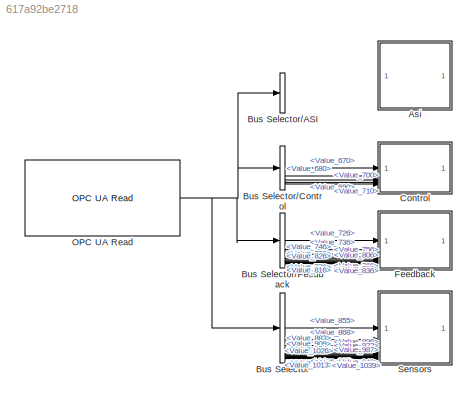
MODEL slx_617a92be2718
KIND model
CONFIG AbsTol = auto
CONFIG EnableMultiTasking = off
CONFIG FixedStep = auto
CONFIG MaxStep = auto
CONFIG MinStep = auto
CONFIG RelTol = 1e-3
CONFIG SampleTimeConstraint = Unconstrained
CONFIG SolverName = VariableStepAuto
CONFIG StartTime = 0.0
CONFIG StopTime = 10.0
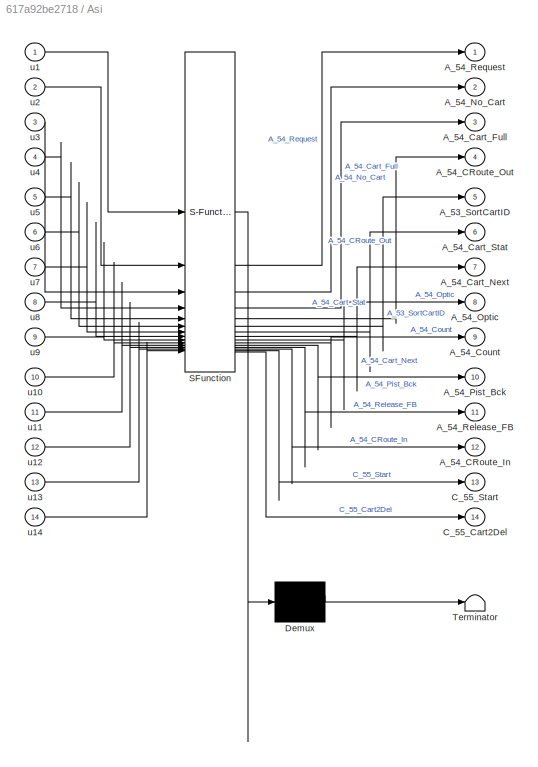
BLOCK [SubSystem] Asi
  ErrorFcn = Stateflow.Translate.translate
  PermitHierarchicalResolution = ExplicitOnly
  SFBlockType = MATLAB Function
  TreatAsAtomicUnit = on
BLOCK [Demux] Asi/ Demux 
  Outputs = 1
BLOCK [S-Function] Asi/ SFunction 
  EnableBusSupport = off
  FunctionName = sf_sfun
  PortCounts = [14 15]
  SFcnIsStateOwnerBlock = off
  SFunctionDeploymentMode = off
  Tag = Stateflow S-Function 2
BLOCK [Terminator] Asi/ Terminator 
BLOCK [Outport] Asi/A_53_SortCartID
  Port = 5
BLOCK [Outport] Asi/A_54_CRoute_In
  Port = 12
BLOCK [Outport] Asi/A_54_CRoute_Out
  Port = 4
BLOCK [Outport] Asi/A_54_Cart_Full
  Port = 3
BLOCK [Outport] Asi/A_54_Cart_Next
  Port = 7
BLOCK [Outport] Asi/A_54_Cart_Stat
  Port = 6
BLOCK [Outport] Asi/A_54_Count
  Port = 9
BLOCK [Outport] Asi/A_54_No_Cart
  Port = 2
BLOCK [Outport] Asi/A_54_Optic
  Port = 8
BLOCK [Outport] Asi/A_54_Pist_Bck
  Port = 10
BLOCK [Outport] Asi/A_54_Release_FB
  Port = 11
BLOCK [Outport] Asi/A_54_Request
BLOCK [Outport] Asi/C_55_Cart2Del
  Port = 14
BLOCK [Outport] Asi/C_55_Start
  Port = 13
BLOCK [Inport] Asi/u1
BLOCK [Inport] Asi/u10
  Port = 10
BLOCK [Inport] Asi/u11
  Port = 11
BLOCK [Inport] Asi/u12
  Port = 12
BLOCK [Inport] Asi/u13
  Port = 13
BLOCK [Inport] Asi/u14
  Port = 14
BLOCK [Inport] Asi/u2
  Port = 2
BLOCK [Inport] Asi/u3
  Port = 3
BLOCK [Inport] Asi/u4
  Port = 4
BLOCK [Inport] Asi/u5
  Port = 5
BLOCK [Inport] Asi/u6
  Port = 6
BLOCK [Inport] Asi/u7
  Port = 7
BLOCK [Inport] Asi/u8
  Port = 8
BLOCK [Inport] Asi/u9
  Port = 9
BLOCK [BusSelector] Bus Selector
  OutputSignals = Value_855,Value_868,Value_883,Value_896,Value_909,Value_922,Value_935,Value_948,Value_961,Value_974,Value_987,Value_1000,Value_1013,Value_1026,Value_1039
BLOCK [BusSelector] Bus Selector//ASI
  OutputSignals = Value_574,Value_584,Value_594,Value_604,Value_614,Value_624,Value_634,Value_644,Value_654
BLOCK [BusSelector] Bus Selector//Control
  OutputSignals = Value_670,Value_680,Value_690,Value_700,Value_710
BLOCK [BusSelector] Bus Selector//Feedback
  OutputSignals = Value_726,Value_736,Value_746,Value_756,Value_766,Value_776,Value_786,Value_796,Value_806,Value_816,Value_826,Value_836
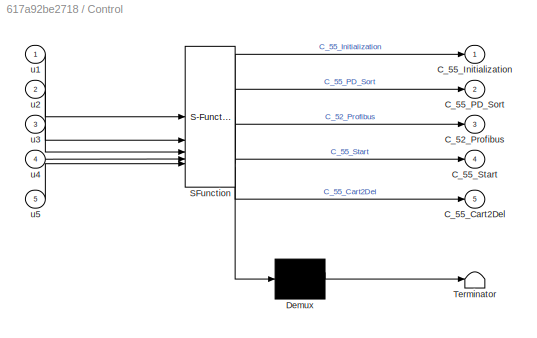
BLOCK [SubSystem] Control
  ErrorFcn = Stateflow.Translate.translate
  PermitHierarchicalResolution = ExplicitOnly
  SFBlockType = MATLAB Function
  TreatAsAtomicUnit = on
BLOCK [Demux] Control/ Demux 
  Outputs = 1
BLOCK [S-Function] Control/ SFunction 
  EnableBusSupport = off
  FunctionName = sf_sfun
  PortCounts = [5 6]
  SFcnIsStateOwnerBlock = off
  SFunctionDeploymentMode = off
  Tag = Stateflow S-Function 1
BLOCK [Terminator] Control/ Terminator 
BLOCK [Outport] Control/C_52_Profibus
  Port = 3
BLOCK [Outport] Control/C_55_Cart2Del
  Port = 5
BLOCK [Outport] Control/C_55_Initialization
BLOCK [Outport] Control/C_55_PD_Sort
  Port = 2
BLOCK [Outport] Control/C_55_Start
  Port = 4
BLOCK [Inport] Control/u1
BLOCK [Inport] Control/u2
  Port = 2
BLOCK [Inport] Control/u3
  Port = 3
BLOCK [Inport] Control/u4
  Port = 4
BLOCK [Inport] Control/u5
  Port = 5
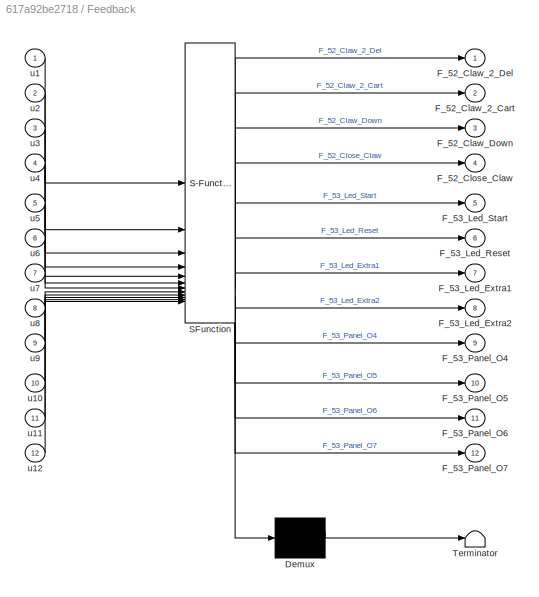
BLOCK [SubSystem] Feedback
  ErrorFcn = Stateflow.Translate.translate
  PermitHierarchicalResolution = ExplicitOnly
  SFBlockType = MATLAB Function
  TreatAsAtomicUnit = on
BLOCK [Demux] Feedback/ Demux 
  Outputs = 1
BLOCK [S-Function] Feedback/ SFunction 
  EnableBusSupport = off
  FunctionName = sf_sfun
  PortCounts = [12 13]
  SFcnIsStateOwnerBlock = off
  SFunctionDeploymentMode = off
  Tag = Stateflow S-Function 3
BLOCK [Terminator] Feedback/ Terminator 
BLOCK [Outport] Feedback/F_52_Claw_2_Cart
  Port = 2
BLOCK [Outport] Feedback/F_52_Claw_2_Del
BLOCK [Outport] Feedback/F_52_Claw_Down
  Port = 3
BLOCK [Outport] Feedback/F_52_Close_Claw
  Port = 4
BLOCK [Outport] Feedback/F_53_Led_Extra1
  Port = 7
BLOCK [Outport] Feedback/F_53_Led_Extra2
  Port = 8
BLOCK [Outport] Feedback/F_53_Led_Reset
  Port = 6
BLOCK [Outport] Feedback/F_53_Led_Start
  Port = 5
BLOCK [Outport] Feedback/F_53_Panel_O4
  Port = 9
BLOCK [Outport] Feedback/F_53_Panel_O5
  Port = 10
BLOCK [Outport] Feedback/F_53_Panel_O6
  Port = 11
BLOCK [Outport] Feedback/F_53_Panel_O7
  Port = 12
BLOCK [Inport] Feedback/u1
BLOCK [Inport] Feedback/u10
  Port = 10
BLOCK [Inport] Feedback/u11
  Port = 11
BLOCK [Inport] Feedback/u12
  Port = 12
BLOCK [Inport] Feedback/u2
  Port = 2
BLOCK [Inport] Feedback/u3
  Port = 3
BLOCK [Inport] Feedback/u4
  Port = 4
BLOCK [Inport] Feedback/u5
  Port = 5
BLOCK [Inport] Feedback/u6
  Port = 6
BLOCK [Inport] Feedback/u7
  Port = 7
BLOCK [Inport] Feedback/u8
  Port = 8
BLOCK [Inport] Feedback/u9
  Port = 9
BLOCK [Reference] OPC UA Read  REF=opcualib/OPC UA Read
  SourceBlock = opcualib/OPC UA Read
  SourceType = opcUARead
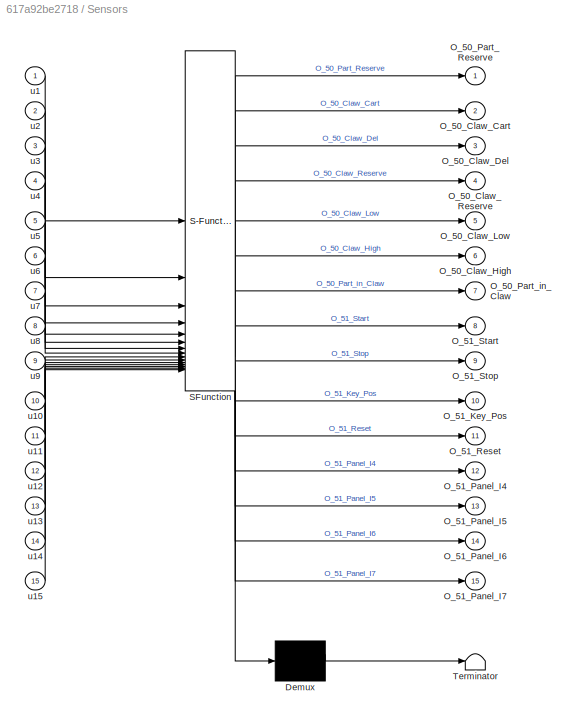
BLOCK [SubSystem] Sensors
  ErrorFcn = Stateflow.Translate.translate
  PermitHierarchicalResolution = ExplicitOnly
  SFBlockType = MATLAB Function
  TreatAsAtomicUnit = on
BLOCK [Demux] Sensors/ Demux 
  Outputs = 1
BLOCK [S-Function] Sensors/ SFunction 
  EnableBusSupport = off
  FunctionName = sf_sfun
  PortCounts = [15 16]
  SFcnIsStateOwnerBlock = off
  SFunctionDeploymentMode = off
  Tag = Stateflow S-Function 4
BLOCK [Terminator] Sensors/ Terminator 
BLOCK [Outport] Sensors/O_50_Claw_Cart
  Port = 2
BLOCK [Outport] Sensors/O_50_Claw_Del
  Port = 3
BLOCK [Outport] Sensors/O_50_Claw_High
  Port = 6
BLOCK [Outport] Sensors/O_50_Claw_Low
  Port = 5
BLOCK [Outport] Sensors/O_50_Claw_Reserve
  Port = 4
BLOCK [Outport] Sensors/O_50_Part_Reserve
BLOCK [Outport] Sensors/O_50_Part_in_Claw
  Port = 7
BLOCK [Outport] Sensors/O_51_Key_Pos
  Port = 10
BLOCK [Outport] Sensors/O_51_Panel_I4
  Port = 12
BLOCK [Outport] Sensors/O_51_Panel_I5
  Port = 13
BLOCK [Outport] Sensors/O_51_Panel_I6
  Port = 14
BLOCK [Outport] Sensors/O_51_Panel_I7
  Port = 15
BLOCK [Outport] Sensors/O_51_Reset
  Port = 11
BLOCK [Outport] Sensors/O_51_Start
  Port = 8
BLOCK [Outport] Sensors/O_51_Stop
  Port = 9
BLOCK [Inport] Sensors/u1
BLOCK [Inport] Sensors/u10
  Port = 10
BLOCK [Inport] Sensors/u11
  Port = 11
BLOCK [Inport] Sensors/u12
  Port = 12
BLOCK [Inport] Sensors/u13
  Port = 13
BLOCK [Inport] Sensors/u14
  Port = 14
BLOCK [Inport] Sensors/u15
  Port = 15
BLOCK [Inport] Sensors/u2
  Port = 2
BLOCK [Inport] Sensors/u3
  Port = 3
BLOCK [Inport] Sensors/u4
  Port = 4
BLOCK [Inport] Sensors/u5
  Port = 5
BLOCK [Inport] Sensors/u6
  Port = 6
BLOCK [Inport] Sensors/u7
  Port = 7
BLOCK [Inport] Sensors/u8
  Port = 8
BLOCK [Inport] Sensors/u9
  Port = 9
LINE Bus Selector//Control:1 -> Control:1
LINE Bus Selector//Control:2 -> Control:2
LINE Bus Selector//Control:3 -> Control:3
LINE Bus Selector//Control:4 -> Control:4
LINE Bus Selector//Control:5 -> Control:5
LINE Bus Selector//Feedback:1 -> Feedback:1
LINE Bus Selector//Feedback:10 -> Feedback:10
LINE Bus Selector//Feedback:11 -> Feedback:11
LINE Bus Selector//Feedback:12 -> Feedback:12
LINE Bus Selector//Feedback:2 -> Feedback:2
LINE Bus Selector//Feedback:3 -> Feedback:3
LINE Bus Selector//Feedback:4 -> Feedback:4
LINE Bus Selector//Feedback:5 -> Feedback:5
LINE Bus Selector//Feedback:6 -> Feedback:6
LINE Bus Selector//Feedback:7 -> Feedback:7
LINE Bus Selector//Feedback:8 -> Feedback:8
LINE Bus Selector//Feedback:9 -> Feedback:9
LINE Bus Selector:1 -> Sensors:1
LINE Bus Selector:10 -> Sensors:10
LINE Bus Selector:11 -> Sensors:11
LINE Bus Selector:12 -> Sensors:12
LINE Bus Selector:13 -> Sensors:13
LINE Bus Selector:14 -> Sensors:14
LINE Bus Selector:15 -> Sensors:15
LINE Bus Selector:2 -> Sensors:2
LINE Bus Selector:3 -> Sensors:3
LINE Bus Selector:4 -> Sensors:4
LINE Bus Selector:5 -> Sensors:5
LINE Bus Selector:6 -> Sensors:6
LINE Bus Selector:7 -> Sensors:7
LINE Bus Selector:8 -> Sensors:8
LINE Bus Selector:9 -> Sensors:9
NET OPC UA Read:1 -> Bus Selector//ASI:1, Bus Selector//Control:1, Bus Selector//Feedback:1, Bus Selector:1
note: NET lines group one-source signal fan-out (src -> all destinations, sorted); 1:1 wires keep LINE
CHART Sensors states=1 transitions=1
  STATE_LABEL 'eML_blk_kernel()'
  STATE_LABEL 'SCRIPT:\nfunction [O_50_Part_Reserve,O_50_Claw_Cart,O_50_Claw_Del,...\n    O_50_Claw_Reserve,O_50_Claw_Low,O_50_Claw_High,O_50_Part_in_Claw,...\n    O_51_Start,O_51_Stop,O_51_Key_Pos,O_51_Reset,O_51_Panel_I4,...\n    O_51_Panel_I5,O_51_Panel_I6,O_51_Panel_I7] = fcn_Sensors(u1,u2,u3,u4,...\n    u5,u6,u7,u8,u9,u10,u11,u12,u13,u14,u15)\n\nO_50_Part_Reserve = u1;\nO_50_Claw_Cart = u2;\nO_50_Claw_Del = u3;\nO_50...<+239ch>'
CHART Control states=1 transitions=1
  STATE_LABEL 'eML_blk_kernel()'
  STATE_LABEL 'SCRIPT:\nfunction [C_55_Initialization,C_55_PD_Sort,C_52_Profibus,...\n    C_55_Start,C_55_Cart2Del] = fcn_Control(u1,u2,u3,u4,u5)\n\nC_55_Initialization = u1;\nC_55_PD_Sort = u2;\nC_52_Profibus = u3;\nC_55_Start = u4;\nC_55_Cart2Del = u5;\n'
CHART Asi states=1 transitions=1
  STATE_LABEL 'eML_blk_kernel()'
  STATE_LABEL 'SCRIPT:\nfunction [A_54_Request, A_54_No_Cart, A_54_Cart_Full, A_54_CRoute_Out, ...\nA_53_SortCartID, A_54_Cart_Stat, A_54_Cart_Next, A_54_Optic, A_54_Count,...\nA_54_Pist_Bck, A_54_Release_FB, A_54_CRoute_In, C_55_Start, C_55_Cart2Del]...\n= fcn_Asi(u1,u2,u3,u4,u5,u6,u7,u8,u9,u10,u11,u12,u13,u14)\n\nA_54_Request = u1;\nA_54_No_Cart = u2;\nA_54_Cart_Full = u3;\nA_54_CRoute_Out = u4;\nA_53_SortCartID = u5;\nA...<+179ch>'
CHART Feedback states=1 transitions=1
  STATE_LABEL 'eML_blk_kernel()'
  STATE_LABEL 'SCRIPT:\nfunction [F_52_Claw_2_Del,F_52_Claw_2_Cart,F_52_Claw_Down,...\n    F_52_Close_Claw,F_53_Led_Start,F_53_Led_Reset,F_53_Led_Extra1,...\n    F_53_Led_Extra2,F_53_Panel_O4,F_53_Panel_O5,F_53_Panel_O6,...\n    F_53_Panel_O7] = fcn_Feedback(u1,u2,u3,u4,u5,u6,u7,u8,u9,u10,u11,u12)\n\nF_52_Claw_2_Del = u1;\nF_52_Claw_2_Cart = u2;\nF_52_Claw_Down = u3;\nF_52_Close_Claw = u4;\nF_53_Led_Start = u5;\nF_53_Led_R...<+138ch>'
CHART  states=0 transitions=0
CHART  states=0 transitions=0
CHART  states=0 transitions=0
CHART  states=0 transitions=0
